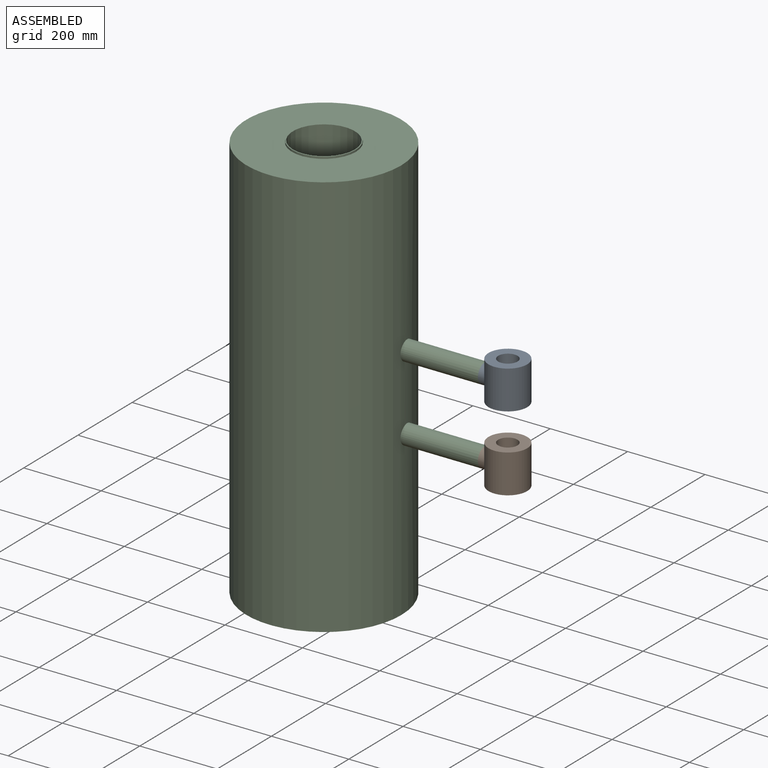
[diagram: assembled view]
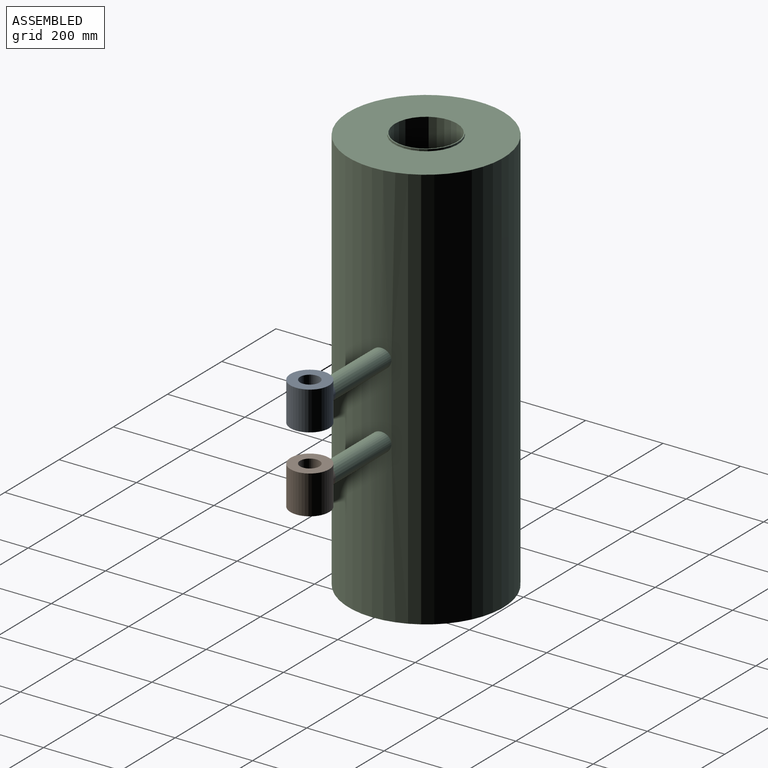
[diagram: assembled view, second angle]
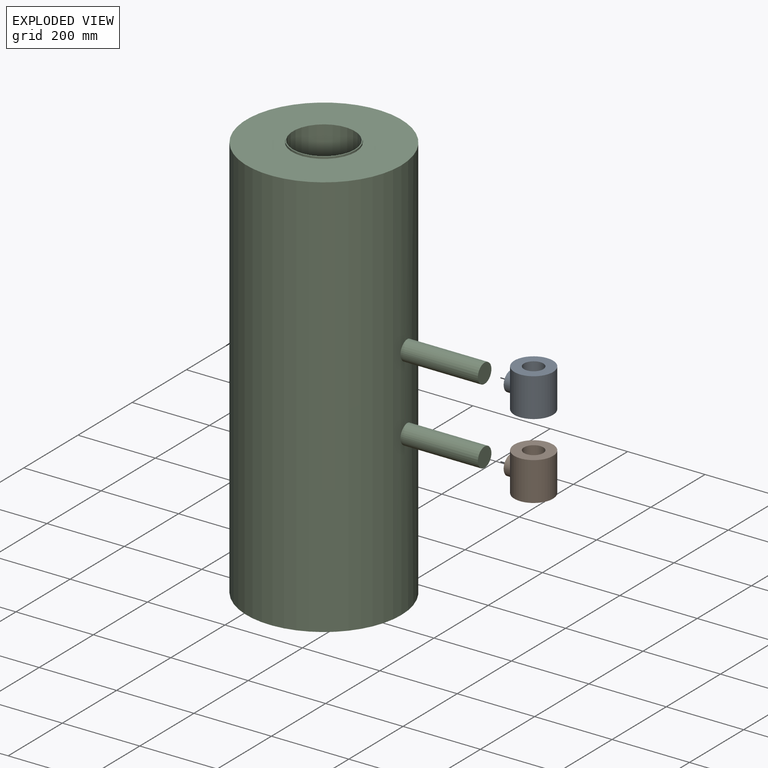
[diagram: exploded view]
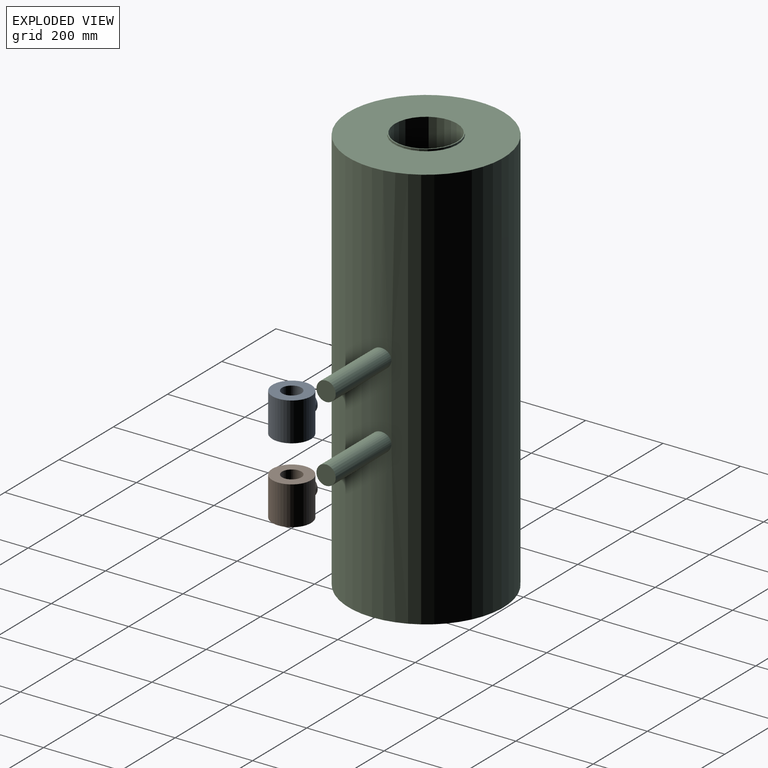
[diagram: exploded view, second angle]
ASSEMBLY  parts=3 mates=2
PART A: 6 faces, bbox 100x110x100 mm
  f0: plane 100x100mm, normal (0,0,-1), area 5890.5mm2, adj f4,f5
  f1: plane 100x100mm, normal (0,0,1), area 5890.5mm2, adj f4,f5
  f2: cylinder r=25mm len=50mm, axis (0,1,0), area 2087.7mm2, adj f3,f5
  f3: plane 50x50mm, normal (0,-1,0), area 1963.5mm2, adj f2
  f4: cylinder r=25mm len=100mm, axis (0,0,1), area 15708mm2, adj f0,f1
  f5: cylinder r=50mm len=100mm, axis (0,0,1), area 29384.5mm2, adj f0,f1,f2
PART B: same geometry as A
PART C: 11 faces, bbox 600x400x1055 mm
  f0: plane 400x400mm, normal (0,0,-1), area 125663.7mm2, adj f4
  f1: plane 400x400mm, normal (0,0,1), area 104281.2mm2, adj f4,f7
  f2: plane 50x50mm, normal (1,0,0), area 1963.5mm2, adj f6
  f3: plane 50x50mm, normal (1,0,0), area 1963.5mm2, adj f5
  f4: cylinder r=200mm len=1050mm, axis (0,0,1), area 1315510.3mm2, adj f0,f1,f5,f6
  f5: cylinder r=25mm len=205.54mm, axis (1,0,0), area 31727.5mm2, adj f3,f4
  f6: cylinder r=25mm len=205.54mm, axis (-1,0,0), area 31727.5mm2, adj f2,f4
  f7: cylinder r=82.5mm len=165mm, axis (0,0,-1), area 2591.8mm2, adj f1,f8
  f8: plane 165x165mm, normal (0,0,1), area 1276.3mm2, adj f7,f9
  f9: cylinder r=80mm len=975mm, axis (0,0,1), area 490088.5mm2, adj f8,f10
  f10: plane 160x160mm, normal (0,0,1), area 20106.2mm2, adj f9
PLACE A rot(axis=(0.71,0.71,0),180deg) t=(-188.06,-158.68,382.19)mm
PLACE B rot(axis=(0.71,0.71,0),180deg) t=(-188.06,-158.68,186.28)mm
PLACE C t=(-898.06,19.57,-295.83)mm
MATE fastened A.f2 <-> C.f6  axis (-1,0,0) through (-298.06,-158.68,332.19)mm
MATE fastened B.f2 <-> C.f5  axis (-1,0,0) through (-298.06,-158.68,136.28)mm
